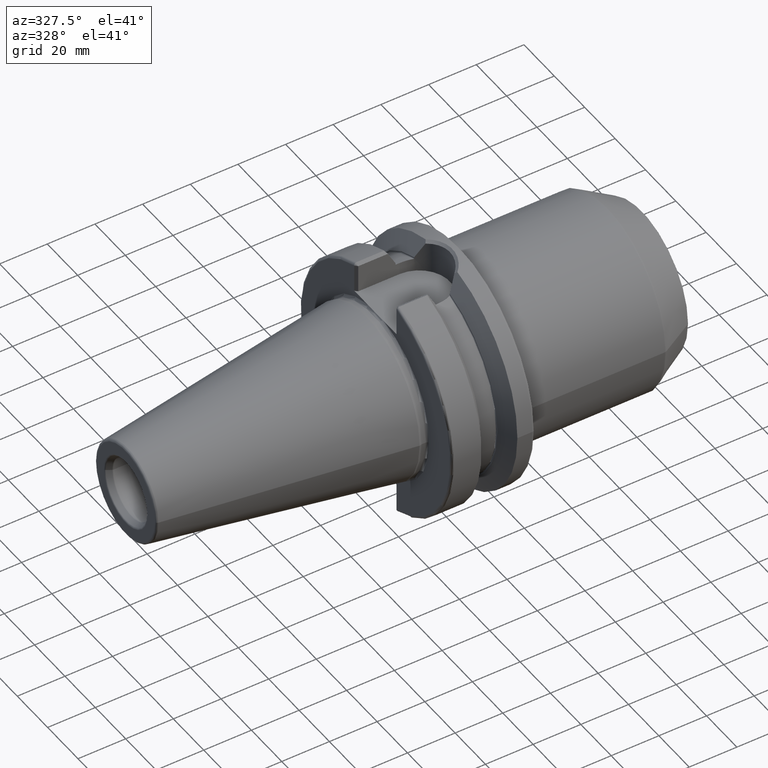
[diagram: clean part render]
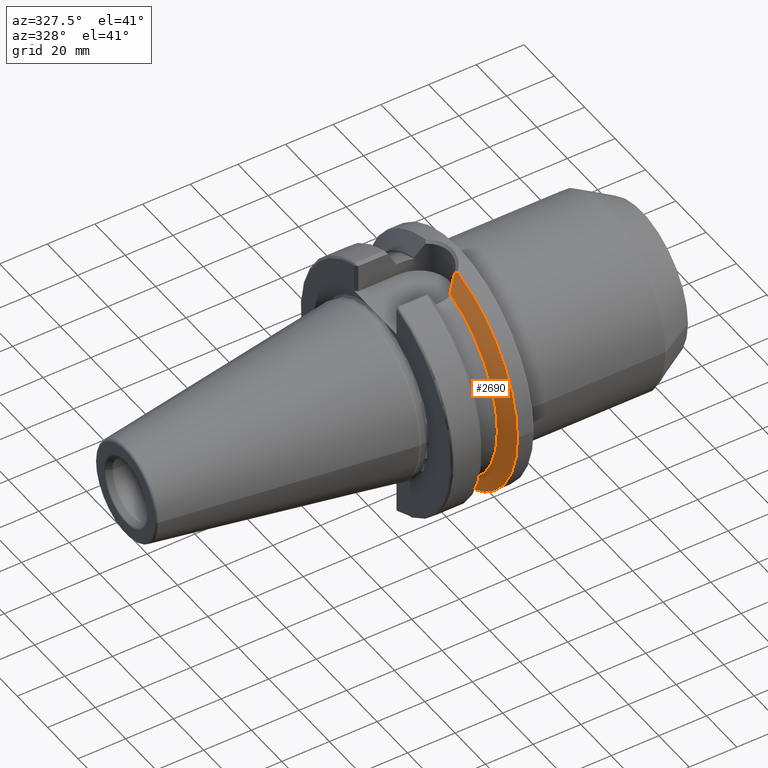
[diagram: same view with one face highlighted and labeled with its STEP entity id]
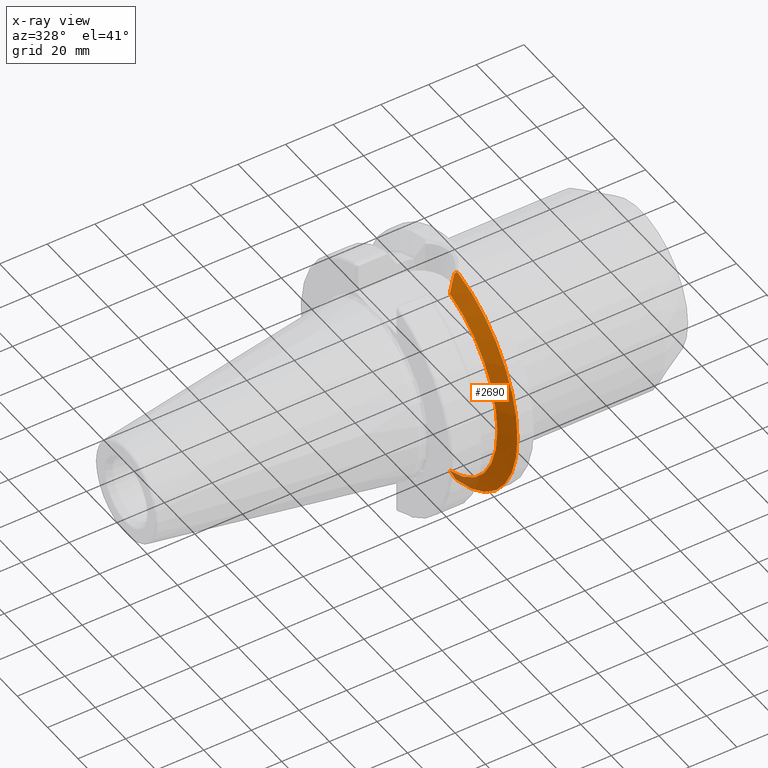
[diagram: x-ray of the same camera — body ghosted, the highlighted face saturated]
A machine part, auxiliary view. The second image highlights one B-rep face of the part: STEP entity #2690.
The next image is the same camera in x-ray: the body ghosted, the highlighted face saturated — about 5% of this face is hidden behind the body in this view.
In plain terms, the highlighted conical surface has half-angle 60 deg.
Its self-contained STEP definition (entity closure, byte-faithful):
#245=CARTESIAN_POINT('',(3.073066823617E1,0.E0,0.E0));
#246=DIRECTION('',(1.E0,0.E0,0.E0));
#247=DIRECTION('',(0.E0,-1.E0,0.E0));
#248=AXIS2_PLACEMENT_3D('',#245,#246,#247);
#391=CARTESIAN_POINT('',(3.016210431090E1,-9.422168385896E0,-4.808834737145E1));
#392=CARTESIAN_POINT('',(2.984184465633E1,-9.721776927818E0,-4.746439031418E1));
#393=CARTESIAN_POINT('',(2.916110296190E1,-1.029742776940E1,-4.613939859477E1));
#394=CARTESIAN_POINT('',(2.801848253867E1,-1.107377940524E1,-4.392131510326E1));
#395=CARTESIAN_POINT('',(2.717774587881E1,-1.152030945269E1,-4.229484073698E1));
#396=CARTESIAN_POINT('',(2.67375E1,-1.172273032403E1,-4.144514217760E1));
#509=CARTESIAN_POINT('',(2.67375E1,-1.172273032403E1,4.144514217760E1));
#510=CARTESIAN_POINT('',(2.716326249817E1,-1.152696877347E1,4.226688702234E1));
#511=CARTESIAN_POINT('',(2.797767730262E1,-1.109641946289E1,4.384231514855E1));
#512=CARTESIAN_POINT('',(2.908877542636E1,-1.035012398508E1,4.599886190686E1));
#513=CARTESIAN_POINT('',(2.975376209181E1,-9.797469511785E0,4.729292626465E1));
#514=CARTESIAN_POINT('',(3.006746015187E1,-9.509826559925E0,4.790397267337E1));
#763=CARTESIAN_POINT('',(2.67375E1,0.E0,0.E0));
#764=DIRECTION('',(-1.E0,0.E0,0.E0));
#765=DIRECTION('',(0.E0,-2.721714149834E-1,-9.622487832499E-1));
#766=AXIS2_PLACEMENT_3D('',#763,#764,#765);
#768=CARTESIAN_POINT('',(3.073066823617E1,-1.024362896192E1,-4.892666166765E1));
#769=CARTESIAN_POINT('',(3.066616058198E1,-1.015105563406E1,-4.883189036884E1));
#770=CARTESIAN_POINT('',(3.053803749239E1,-9.966777409929E0,-4.864343408956E1));
#771=CARTESIAN_POINT('',(3.034851551012E1,-9.692952413043E0,-4.836399253968E1));
#772=CARTESIAN_POINT('',(3.022394652802E1,-9.512141392294E0,-4.817986911933E1));
#773=CARTESIAN_POINT('',(3.016210431090E1,-9.422168385896E0,-4.808834737145E1));
#792=CARTESIAN_POINT('',(3.073066823617E1,0.E0,0.E0));
#793=DIRECTION('',(1.E0,0.E0,0.E0));
#794=DIRECTION('',(0.E0,-2.094051574285E-1,9.778289625708E-1));
#795=AXIS2_PLACEMENT_3D('',#792,#793,#794);
#1211=CARTESIAN_POINT('',(3.006746015187E1,-9.509826559925E0,4.790397267337E1));
#1212=CARTESIAN_POINT('',(3.013934013849E1,-9.614488815529E0,4.801012460295E1));
#1213=CARTESIAN_POINT('',(3.028430182064E1,-9.824984272055E0,4.822389705980E1));
#1214=CARTESIAN_POINT('',(3.050537248019E1,-1.014426259119E1,4.854898701617E1));
#1215=CARTESIAN_POINT('',(3.065516521337E1,-1.035945529402E1,4.876865319706E1));
#1216=CARTESIAN_POINT('',(3.073066823617E1,-1.046764030696E1,4.887922526651E1));
#1468=CARTESIAN_POINT('',(2.67375E1,-1.172273032403E1,-4.144514217760E1));
#1469=CARTESIAN_POINT('',(2.67375E1,-1.172273032403E1,4.144514217760E1));
#1470=VERTEX_POINT('',#1468);
#1471=VERTEX_POINT('',#1469);
#1484=CARTESIAN_POINT('',(3.073066823617E1,-4.99875E1,-1.224340637448E-14));
#1485=CARTESIAN_POINT('',(3.073066823617E1,-1.024362896192E1,
-4.892666166765E1));
#1486=VERTEX_POINT('',#1484);
#1487=VERTEX_POINT('',#1485);
#1492=CARTESIAN_POINT('',(3.073066823617E1,-1.046764030696E1,4.887922526651E1));
#1493=VERTEX_POINT('',#1492);
#1584=VERTEX_POINT('',#514);
#1592=VERTEX_POINT('',#391);
#2673=CARTESIAN_POINT('',(2.873408411809E1,0.E0,0.E0));
#2674=DIRECTION('',(1.E0,0.E0,0.E0));
#2675=DIRECTION('',(0.E0,-1.E0,0.E0));
#2676=AXIS2_PLACEMENT_3D('',#2673,#2674,#2675);
#2677=CONICAL_SURFACE('',#2676,4.652931486589E1,6.E1);
#2679=ORIENTED_EDGE('',*,*,#2678,.T.);
#2680=ORIENTED_EDGE('',*,*,#2029,.T.);
#2682=ORIENTED_EDGE('',*,*,#2681,.T.);
#2683=ORIENTED_EDGE('',*,*,#2152,.T.);
#2684=ORIENTED_EDGE('',*,*,#2197,.T.);
#2685=ORIENTED_EDGE('',*,*,#2248,.T.);
#2687=ORIENTED_EDGE('',*,*,#2686,.T.);
#2688=EDGE_LOOP('',(#2679,#2680,#2682,#2683,#2684,#2685,#2687));
#2689=FACE_OUTER_BOUND('',#2688,.F.);
#2690=ADVANCED_FACE('',(#2689),#2677,.T.);
#249=CIRCLE('',#248,4.99875E1);
#397=B_SPLINE_CURVE_WITH_KNOTS('',3,(#391,#392,#393,#394,#395,#396),
.UNSPECIFIED.,.F.,.F.,(4,1,1,4),(0.E0,3.333333333333E-1,6.666666666667E-1,1.E0),
.UNSPECIFIED.);
#515=B_SPLINE_CURVE_WITH_KNOTS('',3,(#509,#510,#511,#512,#513,#514),
.UNSPECIFIED.,.F.,.F.,(4,1,1,4),(0.E0,3.333333333333E-1,6.666666666667E-1,1.E0),
.UNSPECIFIED.);
#767=CIRCLE('',#766,4.307112973177E1);
#774=B_SPLINE_CURVE_WITH_KNOTS('',3,(#768,#769,#770,#771,#772,#773),
.UNSPECIFIED.,.F.,.F.,(4,1,1,4),(0.E0,3.333333333333E-1,6.666666666667E-1,1.E0),
.UNSPECIFIED.);
#796=CIRCLE('',#795,4.99875E1);
#1217=B_SPLINE_CURVE_WITH_KNOTS('',3,(#1211,#1212,#1213,#1214,#1215,#1216),
.UNSPECIFIED.,.F.,.F.,(4,1,1,4),(0.E0,3.333333333333E-1,6.666666666667E-1,1.E0),
.UNSPECIFIED.);
#2029=EDGE_CURVE('',#1486,#1487,#249,.T.);
#2152=EDGE_CURVE('',#1592,#1470,#397,.T.);
#2197=EDGE_CURVE('',#1470,#1471,#767,.T.);
#2248=EDGE_CURVE('',#1471,#1584,#515,.T.);
#2678=EDGE_CURVE('',#1493,#1486,#796,.T.);
#2681=EDGE_CURVE('',#1487,#1592,#774,.T.);
#2686=EDGE_CURVE('',#1584,#1493,#1217,.T.);